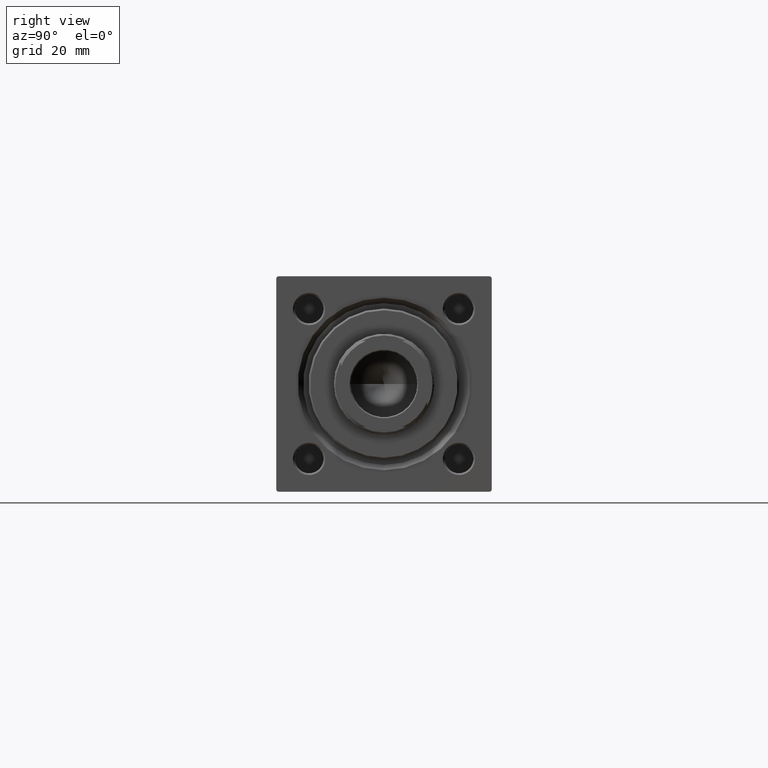
[diagram: clean part render]
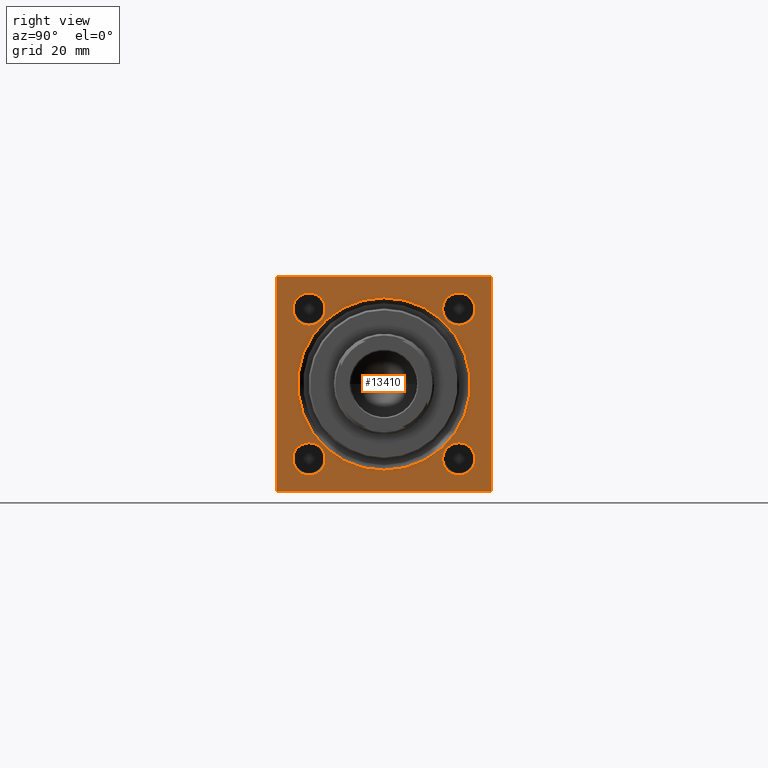
[diagram: same view with one face highlighted and labeled with its STEP entity id]
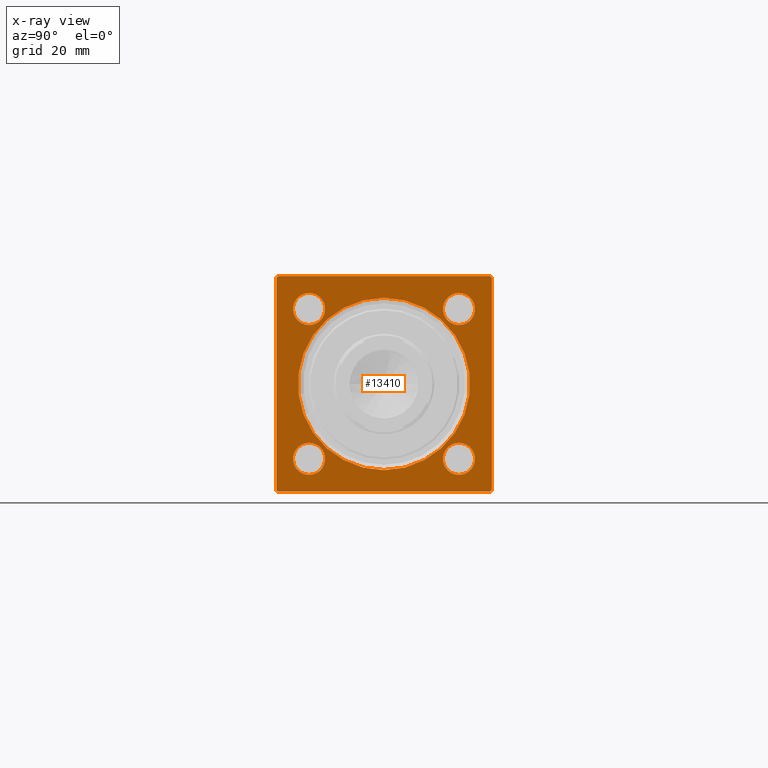
[diagram: x-ray of the same camera — body ghosted, the highlighted face saturated]
A machine part, right view. The second image highlights one B-rep face of the part: STEP entity #13410.
The next image is the same camera in x-ray: the body ghosted, the highlighted face saturated — about 0% of this face is hidden behind the body in this view.
In plain terms, the highlighted planar face has unit normal (-1, 0, 0).
Its self-contained STEP definition (entity closure, byte-faithful):
#40 = EDGE_CURVE ( 'NONE', #44600, #47263, #14593, .T. ) ;
#574 = VERTEX_POINT ( 'NONE', #47579 ) ;
#625 = LINE ( 'NONE', #23984, #39405 ) ;
#836 = AXIS2_PLACEMENT_3D ( 'NONE', #33765, #18766, #45422 ) ;
#981 = DIRECTION ( 'NONE',  ( 0.000000000000000000, 0.7071067811865474617, -0.7071067811865474617 ) ) ;
#1426 = VERTEX_POINT ( 'NONE', #31367 ) ;
#1541 = VECTOR ( 'NONE', #38926, 1000.000000000000000 ) ;
#2030 = EDGE_CURVE ( 'NONE', #8948, #1426, #22735, .T. ) ;
#2439 = DIRECTION ( 'NONE',  ( 0.000000000000000000, -1.000000000000000000, -1.156482317317871478E-16 ) ) ;
#2582 = PLANE ( 'NONE',  #24622 ) ;
#2643 = ORIENTED_EDGE ( 'NONE', *, *, #20496, .T. ) ;
#2704 = CARTESIAN_POINT ( 'NONE',  ( 148.0000000000000000, -29.50000000000000000, -30.00000000000000000 ) ) ;
#3083 = EDGE_CURVE ( 'NONE', #47263, #44600, #25251, .T. ) ;
#4411 = CARTESIAN_POINT ( 'NONE',  ( 148.0000000000000000, -20.85000000000000142, -16.34999999999998366 ) ) ;
#4419 = CIRCLE ( 'NONE', #10886, 4.500000000000017764 ) ;
#4439 = CARTESIAN_POINT ( 'NONE',  ( 148.0000000000000000, -20.84999999999999432, 25.35000000000001918 ) ) ;
#4624 = EDGE_LOOP ( 'NONE', ( #30932, #5452 ) ) ;
#4648 = LINE ( 'NONE', #16071, #37773 ) ;
#5452 = ORIENTED_EDGE ( 'NONE', *, *, #2030, .T. ) ;
#6180 = CIRCLE ( 'NONE', #18326, 24.00000000000003908 ) ;
#6629 = DIRECTION ( 'NONE',  ( 0.000000000000000000, 0.000000000000000000, 1.000000000000000000 ) ) ;
#6741 = ORIENTED_EDGE ( 'NONE', *, *, #22192, .F. ) ;
#7501 = CARTESIAN_POINT ( 'NONE',  ( 148.0000000000000000, -20.84999999999999432, 20.85000000000000142 ) ) ;
#8015 = LINE ( 'NONE', #19448, #37478 ) ;
#8129 = VERTEX_POINT ( 'NONE', #38007 ) ;
#8237 = DIRECTION ( 'NONE',  ( -0.000000000000000000, 0.7071067811865474617, 0.7071067811865474617 ) ) ;
#8948 = VERTEX_POINT ( 'NONE', #47337 ) ;
#8973 = CARTESIAN_POINT ( 'NONE',  ( 148.0000000000000000, 20.84999999999999787, -16.34999999999998366 ) ) ;
#9716 = LINE ( 'NONE', #36616, #12141 ) ;
#9852 = AXIS2_PLACEMENT_3D ( 'NONE', #41814, #45872, #11093 ) ;
#10217 = DIRECTION ( 'NONE',  ( 0.000000000000000000, 0.000000000000000000, -1.000000000000000000 ) ) ;
#10337 = VECTOR ( 'NONE', #2439, 1000.000000000000000 ) ;
#10383 = CARTESIAN_POINT ( 'NONE',  ( 148.0000000000000000, -30.00000000000000000, 29.49999999999999289 ) ) ;
#10791 = VERTEX_POINT ( 'NONE', #24857 ) ;
#10886 = AXIS2_PLACEMENT_3D ( 'NONE', #7501, #23490, #15374 ) ;
#11093 = DIRECTION ( 'NONE',  ( 0.000000000000000000, 0.000000000000000000, 1.000000000000000000 ) ) ;
#11287 = VERTEX_POINT ( 'NONE', #8973 ) ;
#11360 = LINE ( 'NONE', #10383, #35178 ) ;
#11451 = AXIS2_PLACEMENT_3D ( 'NONE', #46852, #27057, #27801 ) ;
#11672 = ORIENTED_EDGE ( 'NONE', *, *, #31379, .T. ) ;
#12141 = VECTOR ( 'NONE', #10217, 1000.000000000000000 ) ;
#12199 = VERTEX_POINT ( 'NONE', #28528 ) ;
#13012 = DIRECTION ( 'NONE',  ( 0.000000000000000000, -0.7071067811865474617, 0.7071067811865474617 ) ) ;
#13410 = ADVANCED_FACE ( 'NONE', ( #18327, #49040, #33813, #40659, #21878, #14264 ), #2582, .F. ) ;
#14034 = DIRECTION ( 'NONE',  ( -1.000000000000000000, 0.000000000000000000, -0.000000000000000000 ) ) ;
#14252 = DIRECTION ( 'NONE',  ( -1.000000000000000000, 0.000000000000000000, -0.000000000000000000 ) ) ;
#14264 = FACE_OUTER_BOUND ( 'NONE', #24494, .T. ) ;
#14320 = CARTESIAN_POINT ( 'NONE',  ( 148.0000000000000000, 20.84999999999999787, -20.85000000000000142 ) ) ;
#14593 = CIRCLE ( 'NONE', #48662, 4.500000000000017764 ) ;
#15138 = VERTEX_POINT ( 'NONE', #16016 ) ;
#15300 = VERTEX_POINT ( 'NONE', #31202 ) ;
#15374 = DIRECTION ( 'NONE',  ( 0.000000000000000000, 0.000000000000000000, 1.000000000000000000 ) ) ;
#15615 = ORIENTED_EDGE ( 'NONE', *, *, #31200, .T. ) ;
#15884 = CARTESIAN_POINT ( 'NONE',  ( 148.0000000000000000, -20.85000000000000142, -25.35000000000001918 ) ) ;
#16016 = CARTESIAN_POINT ( 'NONE',  ( 148.0000000000000000, 30.00000000000000000, -29.49999999999997868 ) ) ;
#16071 = CARTESIAN_POINT ( 'NONE',  ( 148.0000000000000000, 29.50000000000000000, 30.00000000000000000 ) ) ;
#16919 = CARTESIAN_POINT ( 'NONE',  ( 148.0000000000000000, 20.84999999999999787, 20.85000000000000142 ) ) ;
#17217 = DIRECTION ( 'NONE',  ( 0.000000000000000000, 0.000000000000000000, 1.000000000000000000 ) ) ;
#17623 = VERTEX_POINT ( 'NONE', #19888 ) ;
#17710 = EDGE_CURVE ( 'NONE', #15300, #43794, #4648, .T. ) ;
#17945 = EDGE_CURVE ( 'NONE', #11287, #27197, #46682, .T. ) ;
#18326 = AXIS2_PLACEMENT_3D ( 'NONE', #42551, #18479, #37506 ) ;
#18327 = FACE_BOUND ( 'NONE', #4624, .T. ) ;
#18478 = EDGE_CURVE ( 'NONE', #28227, #12199, #6180, .T. ) ;
#18479 = DIRECTION ( 'NONE',  ( -1.000000000000000000, 0.000000000000000000, -0.000000000000000000 ) ) ;
#18766 = DIRECTION ( 'NONE',  ( -1.000000000000000000, 0.000000000000000000, -0.000000000000000000 ) ) ;
#19448 = CARTESIAN_POINT ( 'NONE',  ( 148.0000000000000000, -30.00000000000000000, 29.99999999999999289 ) ) ;
#19573 = VECTOR ( 'NONE', #981, 1000.000000000000114 ) ;
#19763 = ORIENTED_EDGE ( 'NONE', *, *, #17710, .T. ) ;
#19861 = EDGE_CURVE ( 'NONE', #43794, #574, #35385, .T. ) ;
#19888 = CARTESIAN_POINT ( 'NONE',  ( 148.0000000000000000, 29.50000000000000000, -29.99999999999999289 ) ) ;
#20496 = EDGE_CURVE ( 'NONE', #27197, #11287, #40496, .T. ) ;
#21235 = LINE ( 'NONE', #37209, #10337 ) ;
#21878 = FACE_BOUND ( 'NONE', #45441, .T. ) ;
#22127 = DIRECTION ( 'NONE',  ( -0.000000000000000000, 0.000000000000000000, 1.000000000000000000 ) ) ;
#22192 = EDGE_CURVE ( 'NONE', #15300, #15138, #9716, .T. ) ;
#22735 = CIRCLE ( 'NONE', #836, 4.500000000000017764 ) ;
#23408 = VERTEX_POINT ( 'NONE', #4439 ) ;
#23490 = DIRECTION ( 'NONE',  ( -1.000000000000000000, 0.000000000000000000, -0.000000000000000000 ) ) ;
#23501 = DIRECTION ( 'NONE',  ( 0.000000000000000000, 0.000000000000000000, -1.000000000000000000 ) ) ;
#23984 = CARTESIAN_POINT ( 'NONE',  ( 148.0000000000000000, 30.00000000000000000, -29.49999999999999289 ) ) ;
#24394 = ORIENTED_EDGE ( 'NONE', *, *, #25301, .T. ) ;
#24494 = EDGE_LOOP ( 'NONE', ( #11672, #25511, #26994, #32866, #6741, #19763, #27478, #41918 ) ) ;
#24622 = AXIS2_PLACEMENT_3D ( 'NONE', #25444, #36602, #22127 ) ;
#24857 = CARTESIAN_POINT ( 'NONE',  ( 148.0000000000000000, -30.00000000000000000, -29.49999999999998579 ) ) ;
#25096 = CARTESIAN_POINT ( 'NONE',  ( 148.0000000000000000, -20.84999999999999432, 20.85000000000000142 ) ) ;
#25251 = CIRCLE ( 'NONE', #9852, 4.500000000000017764 ) ;
#25301 = EDGE_CURVE ( 'NONE', #12199, #28227, #43045, .T. ) ;
#25444 = CARTESIAN_POINT ( 'NONE',  ( 148.0000000000000000, 0.000000000000000000, 0.000000000000000000 ) ) ;
#25511 = ORIENTED_EDGE ( 'NONE', *, *, #25862, .T. ) ;
#25595 = DIRECTION ( 'NONE',  ( -1.000000000000000000, 0.000000000000000000, -0.000000000000000000 ) ) ;
#25748 = DIRECTION ( 'NONE',  ( 0.000000000000000000, 0.000000000000000000, 1.000000000000000000 ) ) ;
#25862 = EDGE_CURVE ( 'NONE', #10791, #40240, #47694, .T. ) ;
#26013 = ORIENTED_EDGE ( 'NONE', *, *, #18478, .T. ) ;
#26310 = EDGE_LOOP ( 'NONE', ( #28853, #31785 ) ) ;
#26994 = ORIENTED_EDGE ( 'NONE', *, *, #48075, .F. ) ;
#27057 = DIRECTION ( 'NONE',  ( -1.000000000000000000, 0.000000000000000000, -0.000000000000000000 ) ) ;
#27197 = VERTEX_POINT ( 'NONE', #45841 ) ;
#27478 = ORIENTED_EDGE ( 'NONE', *, *, #19861, .T. ) ;
#27752 = CIRCLE ( 'NONE', #35029, 4.500000000000017764 ) ;
#27801 = DIRECTION ( 'NONE',  ( 0.000000000000000000, 0.000000000000000000, 1.000000000000000000 ) ) ;
#27895 = CARTESIAN_POINT ( 'NONE',  ( 148.0000000000000000, -29.50000000000000000, -30.00000000000000000 ) ) ;
#28086 = VERTEX_POINT ( 'NONE', #40027 ) ;
#28227 = VERTEX_POINT ( 'NONE', #38216 ) ;
#28528 = CARTESIAN_POINT ( 'NONE',  ( 148.0000000000000000, 2.939152317953652628E-15, 24.00000000000003908 ) ) ;
#28853 = ORIENTED_EDGE ( 'NONE', *, *, #40, .T. ) ;
#29526 = DIRECTION ( 'NONE',  ( 0.000000000000000000, 0.000000000000000000, 1.000000000000000000 ) ) ;
#29868 = EDGE_LOOP ( 'NONE', ( #2643, #40694 ) ) ;
#29929 = ORIENTED_EDGE ( 'NONE', *, *, #37801, .T. ) ;
#30932 = ORIENTED_EDGE ( 'NONE', *, *, #33238, .T. ) ;
#31200 = EDGE_CURVE ( 'NONE', #23408, #8129, #38264, .T. ) ;
#31202 = CARTESIAN_POINT ( 'NONE',  ( 148.0000000000000000, 30.00000000000000000, 29.50000000000000000 ) ) ;
#31367 = CARTESIAN_POINT ( 'NONE',  ( 148.0000000000000000, 20.84999999999999787, 16.34999999999998366 ) ) ;
#31379 = EDGE_CURVE ( 'NONE', #28086, #10791, #8015, .T. ) ;
#31785 = ORIENTED_EDGE ( 'NONE', *, *, #3083, .T. ) ;
#32866 = ORIENTED_EDGE ( 'NONE', *, *, #41327, .T. ) ;
#33238 = EDGE_CURVE ( 'NONE', #1426, #8948, #27752, .T. ) ;
#33733 = AXIS2_PLACEMENT_3D ( 'NONE', #49320, #14034, #29526 ) ;
#33765 = CARTESIAN_POINT ( 'NONE',  ( 148.0000000000000000, 20.84999999999999787, 20.85000000000000142 ) ) ;
#33813 = FACE_BOUND ( 'NONE', #26310, .T. ) ;
#35029 = AXIS2_PLACEMENT_3D ( 'NONE', #16919, #36968, #41026 ) ;
#35178 = VECTOR ( 'NONE', #41103, 1000.000000000000114 ) ;
#35385 = LINE ( 'NONE', #42756, #1541 ) ;
#36075 = EDGE_CURVE ( 'NONE', #574, #28086, #11360, .T. ) ;
#36602 = DIRECTION ( 'NONE',  ( -1.000000000000000000, 0.000000000000000000, -0.000000000000000000 ) ) ;
#36616 = CARTESIAN_POINT ( 'NONE',  ( 148.0000000000000000, 30.00000000000000000, 30.00000000000000000 ) ) ;
#36968 = DIRECTION ( 'NONE',  ( -1.000000000000000000, 0.000000000000000000, -0.000000000000000000 ) ) ;
#37209 = CARTESIAN_POINT ( 'NONE',  ( 148.0000000000000000, 30.00000000000000000, -29.99999999999999289 ) ) ;
#37478 = VECTOR ( 'NONE', #23501, 1000.000000000000000 ) ;
#37506 = DIRECTION ( 'NONE',  ( 0.000000000000000000, 0.000000000000000000, 1.000000000000000000 ) ) ;
#37554 = EDGE_LOOP ( 'NONE', ( #29929, #15615 ) ) ;
#37773 = VECTOR ( 'NONE', #13012, 1000.000000000000114 ) ;
#37801 = EDGE_CURVE ( 'NONE', #8129, #23408, #4419, .T. ) ;
#38007 = CARTESIAN_POINT ( 'NONE',  ( 148.0000000000000000, -20.84999999999999432, 16.34999999999998366 ) ) ;
#38216 = CARTESIAN_POINT ( 'NONE',  ( 148.0000000000000000, 0.000000000000000000, -24.00000000000003908 ) ) ;
#38264 = CIRCLE ( 'NONE', #39884, 4.500000000000017764 ) ;
#38926 = DIRECTION ( 'NONE',  ( 0.000000000000000000, -1.000000000000000000, -1.156482317317871478E-16 ) ) ;
#39405 = VECTOR ( 'NONE', #8237, 1000.000000000000114 ) ;
#39466 = CARTESIAN_POINT ( 'NONE',  ( 148.0000000000000000, 29.50000000000000000, 30.00000000000000000 ) ) ;
#39884 = AXIS2_PLACEMENT_3D ( 'NONE', #25096, #25595, #17217 ) ;
#40027 = CARTESIAN_POINT ( 'NONE',  ( 148.0000000000000000, -30.00000000000000000, 29.49999999999999289 ) ) ;
#40240 = VERTEX_POINT ( 'NONE', #2704 ) ;
#40496 = CIRCLE ( 'NONE', #46181, 4.500000000000017764 ) ;
#40659 = FACE_BOUND ( 'NONE', #29868, .T. ) ;
#40694 = ORIENTED_EDGE ( 'NONE', *, *, #17945, .T. ) ;
#41026 = DIRECTION ( 'NONE',  ( 0.000000000000000000, 0.000000000000000000, 1.000000000000000000 ) ) ;
#41103 = DIRECTION ( 'NONE',  ( -0.000000000000000000, -0.7071067811865474617, -0.7071067811865474617 ) ) ;
#41327 = EDGE_CURVE ( 'NONE', #17623, #15138, #625, .T. ) ;
#41814 = CARTESIAN_POINT ( 'NONE',  ( 148.0000000000000000, -20.85000000000000142, -20.85000000000000142 ) ) ;
#41918 = ORIENTED_EDGE ( 'NONE', *, *, #36075, .T. ) ;
#42551 = CARTESIAN_POINT ( 'NONE',  ( 148.0000000000000000, 0.000000000000000000, 0.000000000000000000 ) ) ;
#42756 = CARTESIAN_POINT ( 'NONE',  ( 148.0000000000000000, 30.00000000000000000, 30.00000000000000000 ) ) ;
#43045 = CIRCLE ( 'NONE', #11451, 24.00000000000003908 ) ;
#43794 = VERTEX_POINT ( 'NONE', #39466 ) ;
#44600 = VERTEX_POINT ( 'NONE', #15884 ) ;
#44717 = CARTESIAN_POINT ( 'NONE',  ( 148.0000000000000000, -20.85000000000000142, -20.85000000000000142 ) ) ;
#44784 = DIRECTION ( 'NONE',  ( -1.000000000000000000, 0.000000000000000000, -0.000000000000000000 ) ) ;
#45422 = DIRECTION ( 'NONE',  ( 0.000000000000000000, 0.000000000000000000, 1.000000000000000000 ) ) ;
#45441 = EDGE_LOOP ( 'NONE', ( #26013, #24394 ) ) ;
#45841 = CARTESIAN_POINT ( 'NONE',  ( 148.0000000000000000, 20.84999999999999787, -25.35000000000001918 ) ) ;
#45872 = DIRECTION ( 'NONE',  ( -1.000000000000000000, 0.000000000000000000, -0.000000000000000000 ) ) ;
#46181 = AXIS2_PLACEMENT_3D ( 'NONE', #14320, #44784, #25748 ) ;
#46682 = CIRCLE ( 'NONE', #33733, 4.500000000000017764 ) ;
#46852 = CARTESIAN_POINT ( 'NONE',  ( 148.0000000000000000, 0.000000000000000000, 0.000000000000000000 ) ) ;
#47263 = VERTEX_POINT ( 'NONE', #4411 ) ;
#47337 = CARTESIAN_POINT ( 'NONE',  ( 148.0000000000000000, 20.84999999999999787, 25.35000000000001918 ) ) ;
#47579 = CARTESIAN_POINT ( 'NONE',  ( 148.0000000000000000, -29.50000000000000000, 29.99999999999999289 ) ) ;
#47694 = LINE ( 'NONE', #27895, #19573 ) ;
#48075 = EDGE_CURVE ( 'NONE', #17623, #40240, #21235, .T. ) ;
#48662 = AXIS2_PLACEMENT_3D ( 'NONE', #44717, #14252, #6629 ) ;
#49040 = FACE_BOUND ( 'NONE', #37554, .T. ) ;
#49320 = CARTESIAN_POINT ( 'NONE',  ( 148.0000000000000000, 20.84999999999999787, -20.85000000000000142 ) ) ;